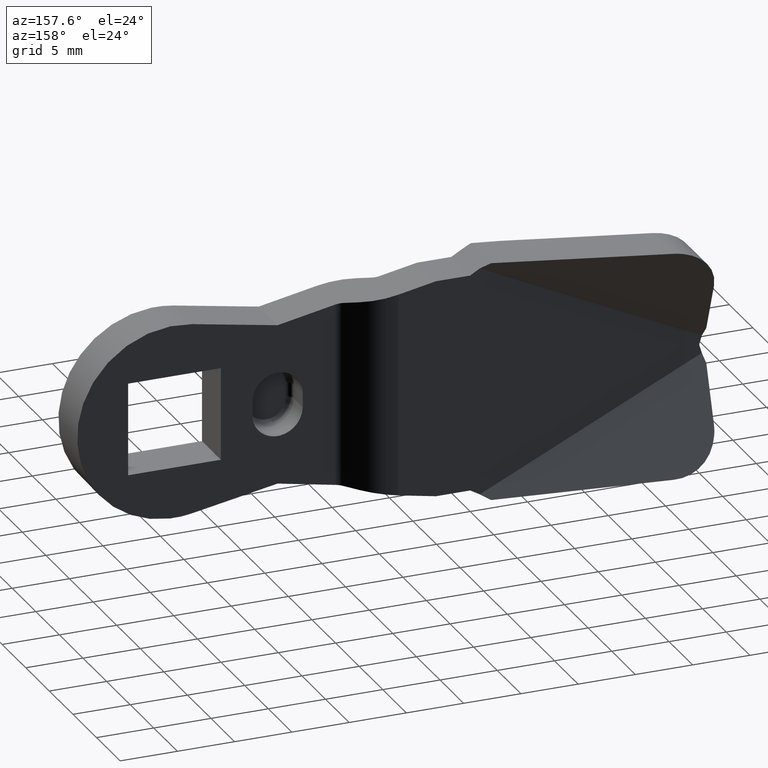
[diagram: clean part render]
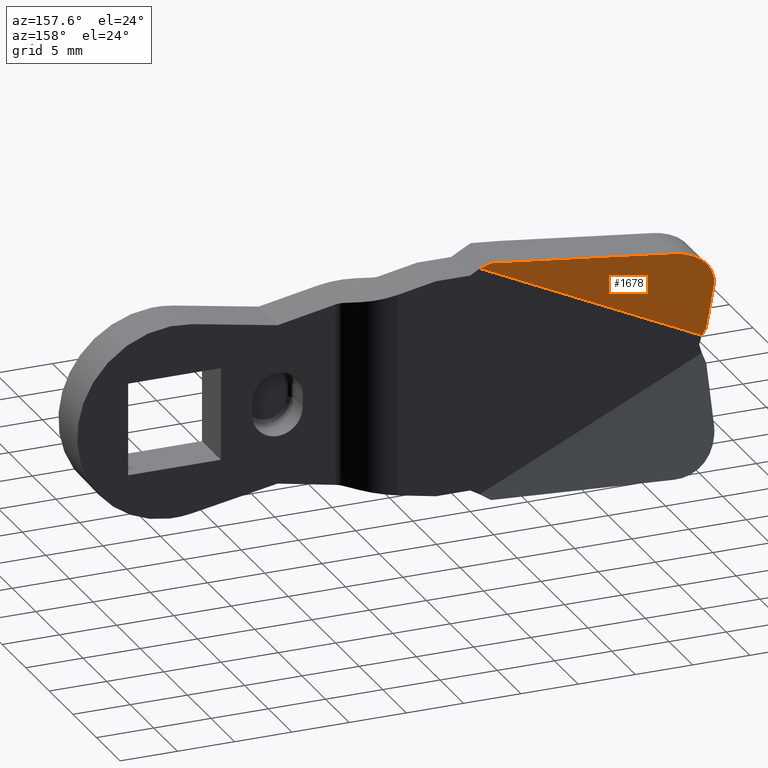
[diagram: same view with one face highlighted and labeled with its STEP entity id]
A machine part, auxiliary view. The second image highlights one B-rep face of the part: STEP entity #1678.
In plain terms, the highlighted face is a freeform B-spline surface patch.
Its self-contained STEP definition (entity closure, byte-faithful):
#1297=CARTESIAN_POINT('',(-45.460283177382600,0.392417751756968,1.547154255351755));
#1298=VERTEX_POINT('',#1297);
#1304=CARTESIAN_POINT('',(-45.230142657384512,0.0,0.773577127678626));
#1305=VERTEX_POINT('',#1304);
#1306=CARTESIAN_POINT('',(-45.460283177382600,0.392417751756968,1.547154255351755));
#1307=CARTESIAN_POINT('',(-45.230142657384512,0.0,0.773577127678626));
#1308=QUASI_UNIFORM_CURVE('',1,(#1306,#1307),.UNSPECIFIED.,.F.,.U.);
#1309=EDGE_CURVE('',#1298,#1305,#1308,.T.);
#1479=CARTESIAN_POINT('',(-41.435250388168953,3.294008147242960,9.987282596007601));
#1480=VERTEX_POINT('',#1479);
#1486=CARTESIAN_POINT('',(-45.302375168507503,2.394779060617760,6.127238442916280));
#1487=VERTEX_POINT('',#1486);
#1488=CARTESIAN_POINT('',(-45.302375168507503,2.394779060617760,6.127238442916280));
#1489=CARTESIAN_POINT('',(-45.173499128930153,4.028998864373508,9.865257275547242));
#1490=CARTESIAN_POINT('',(-41.435250388168953,3.294008147242960,9.987282596007601));
#1498=(BOUNDED_CURVE()B_SPLINE_CURVE(2,(#1488,#1489,#1490),.UNSPECIFIED.,.F.,.U.)CURVE()GEOMETRIC_REPRESENTATION_ITEM()QUASI_UNIFORM_CURVE()RATIONAL_B_SPLINE_CURVE((1.0,0.730425871811320,1.0))REPRESENTATION_ITEM(''));
#1499=EDGE_CURVE('',#1487,#1480,#1498,.T.);
#1520=CARTESIAN_POINT('',(-26.677422310751400,0.392417751805869,10.469013167020041));
#1521=VERTEX_POINT('',#1520);
#1527=CARTESIAN_POINT('',(-26.677422310751400,0.392417751805869,10.469013167020041));
#1528=CARTESIAN_POINT('',(-41.435250388168953,3.294008147242960,9.987282596007601));
#1529=QUASI_UNIFORM_CURVE('',1,(#1527,#1528),.UNSPECIFIED.,.F.,.U.);
#1530=EDGE_CURVE('',#1521,#1480,#1529,.T.);
#1557=CARTESIAN_POINT('',(-25.838711749085650,3.337608E-014,9.984506809118299));
#1558=VERTEX_POINT('',#1557);
#1564=CARTESIAN_POINT('',(-25.838711749085650,3.337608E-014,9.984506809118299));
#1565=CARTESIAN_POINT('',(-26.677422310751400,0.392417751805869,10.469013167020041));
#1566=QUASI_UNIFORM_CURVE('',1,(#1564,#1565),.UNSPECIFIED.,.F.,.U.);
#1567=EDGE_CURVE('',#1558,#1521,#1566,.T.);
#1657=CARTESIAN_POINT('',(-46.520834949160133,0.048075185794973,0.268661813472505));
#1658=CARTESIAN_POINT('',(-25.259639139481472,-4.057100395053874,1.131566681726989));
#1659=CARTESIAN_POINT('',(-46.086986020240317,4.393314875108270,10.251019258442181));
#1660=CARTESIAN_POINT('',(-24.825790210561660,0.288139294259420,11.113924126696670));
#1661=B_SPLINE_SURFACE_WITH_KNOTS('',1,1,((#1657,#1659),(#1658,#1660)),.UNSPECIFIED.,.F.,.F.,.U.,(2,2),(2,2),(0.0,21.671075622099440),(0.0,10.895723611116880),.UNSPECIFIED.);
#1662=ORIENTED_EDGE('',*,*,#1309,.F.);
#1663=CARTESIAN_POINT('',(-45.302375168507503,2.394779060617760,6.127238442916280));
#1664=CARTESIAN_POINT('',(-45.460283177382600,0.392417751756968,1.547154255351755));
#1665=QUASI_UNIFORM_CURVE('',1,(#1663,#1664),.UNSPECIFIED.,.F.,.U.);
#1666=EDGE_CURVE('',#1487,#1298,#1665,.T.);
#1667=ORIENTED_EDGE('',*,*,#1666,.F.);
#1668=ORIENTED_EDGE('',*,*,#1499,.T.);
#1669=ORIENTED_EDGE('',*,*,#1530,.F.);
#1670=ORIENTED_EDGE('',*,*,#1567,.F.);
#1671=CARTESIAN_POINT('',(-45.230142657384512,0.0,0.773577127678626));
#1672=CARTESIAN_POINT('',(-25.838711749085650,3.337608E-014,9.984506809118299));
#1673=QUASI_UNIFORM_CURVE('',1,(#1671,#1672),.UNSPECIFIED.,.F.,.U.);
#1674=EDGE_CURVE('',#1305,#1558,#1673,.T.);
#1675=ORIENTED_EDGE('',*,*,#1674,.F.);
#1676=EDGE_LOOP('',(#1662,#1667,#1668,#1669,#1670,#1675));
#1677=FACE_OUTER_BOUND('',#1676,.T.);
#1678=ADVANCED_FACE('',(#1677),#1661,.F.);